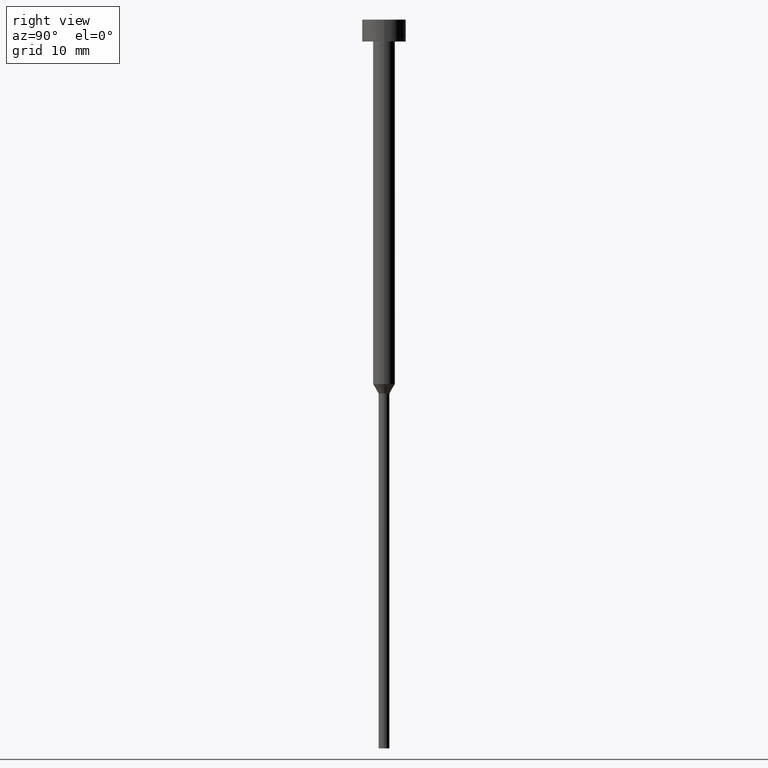
[diagram: clean part render]
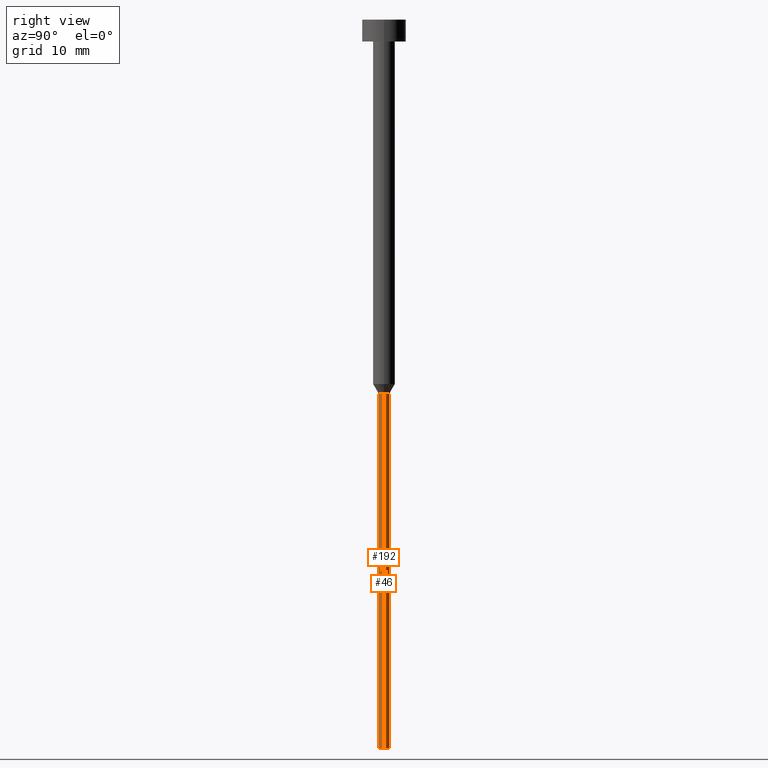
[diagram: same view with one multi-face feature highlighted, each face labeled with its STEP entity id]
A machine part, right view. The highlighted faces form ONE feature: a constant-radius fillet chain: 2 tangent blend faces with common blend radius 0.75 mm. The faces share edges in the B-rep.
Their STEP definitions:
[1] entity #46 (Cylinder):
#20 = ORIENTED_EDGE ( 'NONE', *, *, #99, .T. ) ;
#26 = LINE ( 'NONE', #103, #52 ) ;
#38 = EDGE_CURVE ( 'NONE', #136, #194, #26, .T. ) ;
#46 = ADVANCED_FACE ( 'NONE', ( #205 ), #208, .T. ) ;
#52 = VECTOR ( 'NONE', #353, 1000.000000000000000 ) ;
#60 = EDGE_LOOP ( 'NONE', ( #20, #193, #110, #165 ) ) ;
#80 = DIRECTION ( 'NONE',  ( -0.000000000000000000, -0.000000000000000000, 1.000000000000000000 ) ) ;
#84 = AXIS2_PLACEMENT_3D ( 'NONE', #237, #236, #186 ) ;
#94 = CARTESIAN_POINT ( 'NONE',  ( 0.7500000000000000000, 0.000000000000000000, -51.29903810567665090 ) ) ;
#96 = LINE ( 'NONE', #124, #97 ) ;
#97 = VECTOR ( 'NONE', #340, 1000.000000000000000 ) ;
#99 = EDGE_CURVE ( 'NONE', #173, #136, #123, .T. ) ;
#103 = CARTESIAN_POINT ( 'NONE',  ( -0.7500000000000000000, 9.184850993605149670E-17, 0.000000000000000000 ) ) ;
#110 = ORIENTED_EDGE ( 'NONE', *, *, #260, .F. ) ;
#117 = CARTESIAN_POINT ( 'NONE',  ( 0.000000000000000000, 0.000000000000000000, -51.29903810567665090 ) ) ;
#120 = CIRCLE ( 'NONE', #230, 0.7500000000000000000 ) ;
#123 = CIRCLE ( 'NONE', #84, 0.7500000000000000000 ) ;
#124 = CARTESIAN_POINT ( 'NONE',  ( 0.7500000000000000000, 0.000000000000000000, 0.000000000000000000 ) ) ;
#131 = CARTESIAN_POINT ( 'NONE',  ( 0.000000000000000000, 0.000000000000000000, 0.000000000000000000 ) ) ;
#136 = VERTEX_POINT ( 'NONE', #351 ) ;
#151 = DIRECTION ( 'NONE',  ( 1.000000000000000000, 0.000000000000000000, 0.000000000000000000 ) ) ;
#155 = DIRECTION ( 'NONE',  ( 1.000000000000000000, 0.000000000000000000, 0.000000000000000000 ) ) ;
#165 = ORIENTED_EDGE ( 'NONE', *, *, #332, .F. ) ;
#173 = VERTEX_POINT ( 'NONE', #249 ) ;
#186 = DIRECTION ( 'NONE',  ( 1.000000000000000000, 0.000000000000000000, 0.000000000000000000 ) ) ;
#188 = AXIS2_PLACEMENT_3D ( 'NONE', #131, #80, #155 ) ;
#193 = ORIENTED_EDGE ( 'NONE', *, *, #38, .T. ) ;
#194 = VERTEX_POINT ( 'NONE', #215 ) ;
#205 = FACE_OUTER_BOUND ( 'NONE', #60, .T. ) ;
#208 = CYLINDRICAL_SURFACE ( 'NONE', #188, 0.7500000000000000000 ) ;
#215 = CARTESIAN_POINT ( 'NONE',  ( -0.7500000000000000000, 9.184850993605149670E-17, -51.29903810567665090 ) ) ;
#230 = AXIS2_PLACEMENT_3D ( 'NONE', #117, #254, #151 ) ;
#236 = DIRECTION ( 'NONE',  ( -0.000000000000000000, -0.000000000000000000, 1.000000000000000000 ) ) ;
#237 = CARTESIAN_POINT ( 'NONE',  ( 0.000000000000000000, 0.000000000000000000, -100.0000000000000000 ) ) ;
#249 = CARTESIAN_POINT ( 'NONE',  ( 0.7500000000000000000, 0.000000000000000000, -100.0000000000000000 ) ) ;
#254 = DIRECTION ( 'NONE',  ( -0.000000000000000000, -0.000000000000000000, 1.000000000000000000 ) ) ;
#260 = EDGE_CURVE ( 'NONE', #331, #194, #120, .T. ) ;
#331 = VERTEX_POINT ( 'NONE', #94 ) ;
#332 = EDGE_CURVE ( 'NONE', #173, #331, #96, .T. ) ;
#340 = DIRECTION ( 'NONE',  ( -0.000000000000000000, -0.000000000000000000, 1.000000000000000000 ) ) ;
#351 = CARTESIAN_POINT ( 'NONE',  ( -0.7500000000000000000, 9.184850993605149670E-17, -100.0000000000000000 ) ) ;
#353 = DIRECTION ( 'NONE',  ( -0.000000000000000000, -0.000000000000000000, 1.000000000000000000 ) ) ;
[2] entity #192 (Cylinder):
#3 = CARTESIAN_POINT ( 'NONE',  ( 0.000000000000000000, 0.000000000000000000, -51.29903810567665090 ) ) ;
#26 = LINE ( 'NONE', #103, #52 ) ;
#27 = AXIS2_PLACEMENT_3D ( 'NONE', #251, #300, #109 ) ;
#38 = EDGE_CURVE ( 'NONE', #136, #194, #26, .T. ) ;
#40 = CIRCLE ( 'NONE', #278, 0.7500000000000000000 ) ;
#52 = VECTOR ( 'NONE', #353, 1000.000000000000000 ) ;
#53 = ORIENTED_EDGE ( 'NONE', *, *, #267, .T. ) ;
#69 = DIRECTION ( 'NONE',  ( 1.000000000000000000, 0.000000000000000000, 0.000000000000000000 ) ) ;
#73 = CIRCLE ( 'NONE', #301, 0.7500000000000000000 ) ;
#94 = CARTESIAN_POINT ( 'NONE',  ( 0.7500000000000000000, 0.000000000000000000, -51.29903810567665090 ) ) ;
#96 = LINE ( 'NONE', #124, #97 ) ;
#97 = VECTOR ( 'NONE', #340, 1000.000000000000000 ) ;
#103 = CARTESIAN_POINT ( 'NONE',  ( -0.7500000000000000000, 9.184850993605149670E-17, 0.000000000000000000 ) ) ;
#109 = DIRECTION ( 'NONE',  ( 1.000000000000000000, 0.000000000000000000, 0.000000000000000000 ) ) ;
#118 = EDGE_LOOP ( 'NONE', ( #164, #53, #299, #334 ) ) ;
#124 = CARTESIAN_POINT ( 'NONE',  ( 0.7500000000000000000, 0.000000000000000000, 0.000000000000000000 ) ) ;
#136 = VERTEX_POINT ( 'NONE', #351 ) ;
#139 = CYLINDRICAL_SURFACE ( 'NONE', #27, 0.7500000000000000000 ) ;
#164 = ORIENTED_EDGE ( 'NONE', *, *, #38, .F. ) ;
#173 = VERTEX_POINT ( 'NONE', #249 ) ;
#192 = ADVANCED_FACE ( 'NONE', ( #298 ), #139, .T. ) ;
#194 = VERTEX_POINT ( 'NONE', #215 ) ;
#215 = CARTESIAN_POINT ( 'NONE',  ( -0.7500000000000000000, 9.184850993605149670E-17, -51.29903810567665090 ) ) ;
#220 = DIRECTION ( 'NONE',  ( -0.000000000000000000, -0.000000000000000000, 1.000000000000000000 ) ) ;
#229 = DIRECTION ( 'NONE',  ( -0.000000000000000000, -0.000000000000000000, 1.000000000000000000 ) ) ;
#243 = EDGE_CURVE ( 'NONE', #194, #331, #73, .T. ) ;
#249 = CARTESIAN_POINT ( 'NONE',  ( 0.7500000000000000000, 0.000000000000000000, -100.0000000000000000 ) ) ;
#251 = CARTESIAN_POINT ( 'NONE',  ( 0.000000000000000000, 0.000000000000000000, 0.000000000000000000 ) ) ;
#253 = CARTESIAN_POINT ( 'NONE',  ( 0.000000000000000000, 0.000000000000000000, -100.0000000000000000 ) ) ;
#267 = EDGE_CURVE ( 'NONE', #136, #173, #40, .T. ) ;
#278 = AXIS2_PLACEMENT_3D ( 'NONE', #253, #229, #69 ) ;
#298 = FACE_OUTER_BOUND ( 'NONE', #118, .T. ) ;
#299 = ORIENTED_EDGE ( 'NONE', *, *, #332, .T. ) ;
#300 = DIRECTION ( 'NONE',  ( -0.000000000000000000, -0.000000000000000000, 1.000000000000000000 ) ) ;
#301 = AXIS2_PLACEMENT_3D ( 'NONE', #3, #220, #328 ) ;
#328 = DIRECTION ( 'NONE',  ( 1.000000000000000000, 0.000000000000000000, 0.000000000000000000 ) ) ;
#331 = VERTEX_POINT ( 'NONE', #94 ) ;
#332 = EDGE_CURVE ( 'NONE', #173, #331, #96, .T. ) ;
#334 = ORIENTED_EDGE ( 'NONE', *, *, #243, .F. ) ;
#340 = DIRECTION ( 'NONE',  ( -0.000000000000000000, -0.000000000000000000, 1.000000000000000000 ) ) ;
#351 = CARTESIAN_POINT ( 'NONE',  ( -0.7500000000000000000, 9.184850993605149670E-17, -100.0000000000000000 ) ) ;
#353 = DIRECTION ( 'NONE',  ( -0.000000000000000000, -0.000000000000000000, 1.000000000000000000 ) ) ;